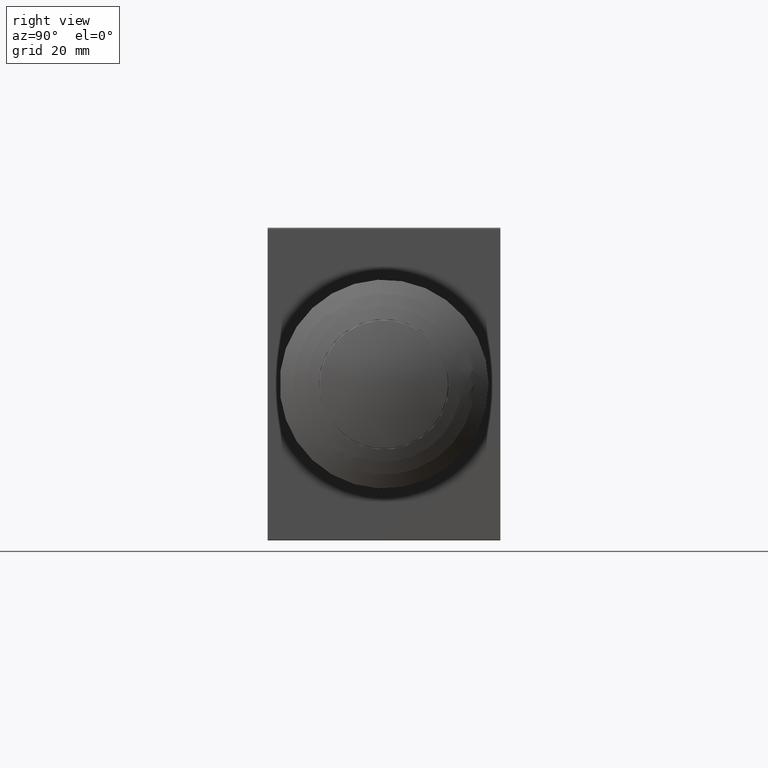
[diagram: clean part render]
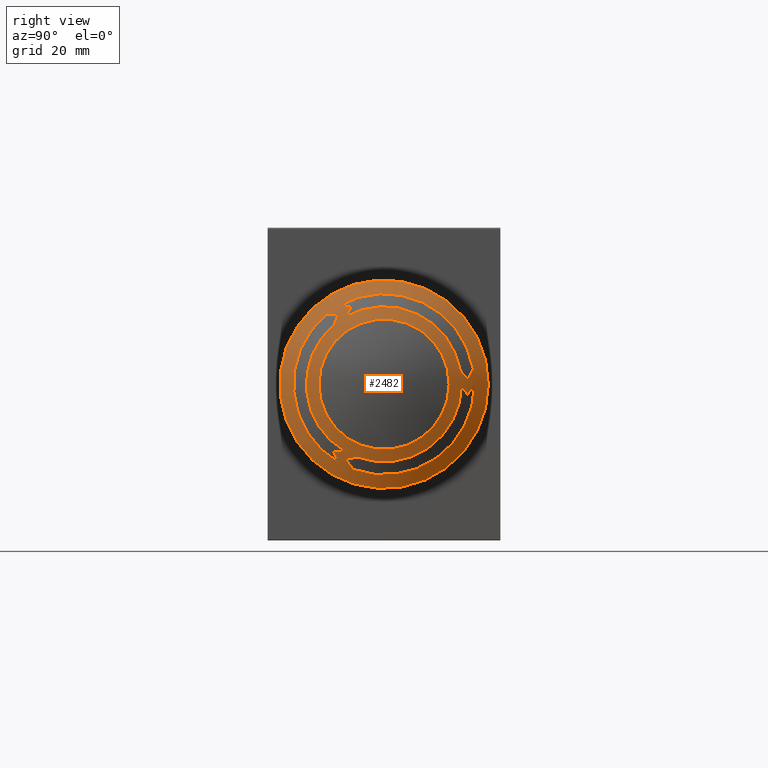
[diagram: same view with one face highlighted and labeled with its STEP entity id]
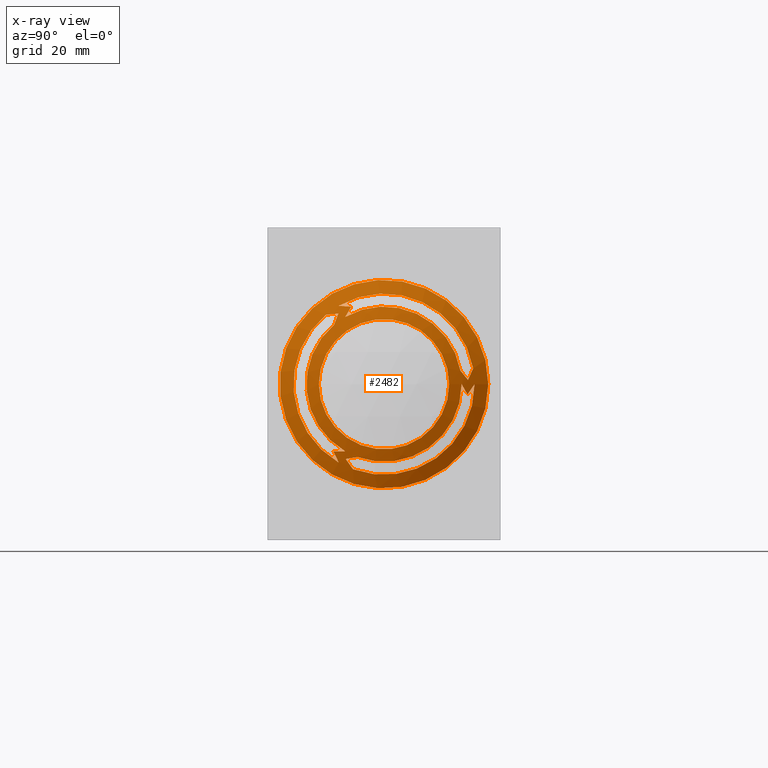
[diagram: x-ray of the same camera — body ghosted, the highlighted face saturated]
A machine part, right view. The second image highlights one B-rep face of the part: STEP entity #2482.
The next image is the same camera in x-ray: the body ghosted, the highlighted face saturated — about 0% of this face is hidden behind the body in this view.
In plain terms, the highlighted spherical surface has radius 42.9695 mm.
Its self-contained STEP definition (entity closure, byte-faithful):
#214=CARTESIAN_POINT('',(17.496637415900867,-6.265117936869075,-14.469868994267387));
#215=VERTEX_POINT('',#214);
#222=CARTESIAN_POINT('',(16.962772236921850,-4.855513292471695,-16.444620863753400));
#223=VERTEX_POINT('',#222);
#224=CARTESIAN_POINT('',(-22.281675257115516,-10.611396956599197,-8.381053485867064));
#225=DIRECTION('',(0.0,-0.813915195325812,-0.580983695827813));
#226=DIRECTION('',(0.0,-0.580983695827813,0.813915195325812));
#227=AXIS2_PLACEMENT_3D('',#224,#225,#226);
#228=CIRCLE('',#227,40.475646686926915);
#229=EDGE_CURVE('',#223,#215,#228,.T.);
#246=CARTESIAN_POINT('',(17.984646391530958,-4.000462934157525,-14.095389311788630));
#247=VERTEX_POINT('',#246);
#254=CARTESIAN_POINT('',(-22.281675257115516,3.262048253989444,-12.894472227076230));
#255=DIRECTION('',(0.0,-0.163142980605630,0.986602436586851));
#256=DIRECTION('',(0.0,0.986602436586851,0.163142980605630));
#257=AXIS2_PLACEMENT_3D('',#254,#255,#256);
#258=CIRCLE('',#257,40.933640562678640);
#259=EDGE_CURVE('',#215,#247,#258,.T.);
#271=CARTESIAN_POINT('',(17.984646391530958,16.129839215727504,0.0));
#272=VERTEX_POINT('',#271);
#279=CARTESIAN_POINT('',(17.984646391530958,1.129839215727505,0.0));
#280=DIRECTION('',(1.0,0.0,0.0));
#281=DIRECTION('',(0.0,-1.0,0.0));
#282=AXIS2_PLACEMENT_3D('',#279,#280,#281);
#283=CIRCLE('',#282,15.0);
#284=EDGE_CURVE('',#247,#272,#283,.T.);
#297=CARTESIAN_POINT('',(16.962772236921850,18.629839215727504,0.0));
#298=VERTEX_POINT('',#297);
#299=CARTESIAN_POINT('',(16.962772236921850,1.129839215727505,0.0));
#300=DIRECTION('',(-1.0,0.0,0.0));
#301=DIRECTION('',(0.0,1.0,0.0));
#302=AXIS2_PLACEMENT_3D('',#299,#300,#301);
#303=CIRCLE('',#302,17.500000000000000);
#304=EDGE_CURVE('',#298,#223,#303,.T.);
#322=CARTESIAN_POINT('',(17.496637415900867,17.256292638597643,-2.000000000000000));
#323=VERTEX_POINT('',#322);
#324=CARTESIAN_POINT('',(-22.281675257115516,13.021192609288503,-8.166663875583643));
#325=DIRECTION('',(0.0,-0.824321483526595,0.566121976076282));
#326=DIRECTION('',(0.0,0.566121976076282,0.824321483526595));
#327=AXIS2_PLACEMENT_3D('',#324,#325,#326);
#328=CIRCLE('',#327,40.475646686926922);
#329=EDGE_CURVE('',#323,#298,#328,.T.);
#347=CARTESIAN_POINT('',(-22.281675257115516,12.517421175573240,6.413790338441227));
#348=DIRECTION('',(0.0,0.871304843700746,0.490742161775018));
#349=DIRECTION('',(0.0,0.490742161775018,-0.871304843700746));
#350=AXIS2_PLACEMENT_3D('',#347,#348,#349);
#351=CIRCLE('',#350,40.933640562678640);
#352=EDGE_CURVE('',#272,#323,#351,.T.);
#426=CARTESIAN_POINT('',(16.962772236921850,18.363974893441142,3.038843109171293));
#427=VERTEX_POINT('',#426);
#434=CARTESIAN_POINT('',(16.962772236921850,-7.620160784272506,15.155444566227667));
#435=VERTEX_POINT('',#434);
#436=CARTESIAN_POINT('',(16.962772236921850,1.129839215727505,0.0));
#437=DIRECTION('',(-1.000000000000000,0.0,0.0));
#438=DIRECTION('',(0.0,-0.500000000000001,0.866025403784438));
#439=AXIS2_PLACEMENT_3D('',#436,#437,#438);
#440=CIRCLE('',#439,17.499999999999996);
#441=EDGE_CURVE('',#435,#427,#440,.T.);
#458=CARTESIAN_POINT('',(17.496637415900867,17.358591930494136,0.830713743087626));
#459=VERTEX_POINT('',#458);
#466=CARTESIAN_POINT('',(-22.281675257115516,14.258662531127854,-5.977682054134155));
#467=DIRECTION('',(0.0,0.910104237434364,-0.414379387764420));
#468=DIRECTION('',(0.0,-0.414379387764420,-0.910104237434364));
#469=AXIS2_PLACEMENT_3D('',#466,#467,#468);
#470=CIRCLE('',#469,40.475646686926922);
#471=EDGE_CURVE('',#427,#459,#470,.T.);
#483=CARTESIAN_POINT('',(17.984646391530958,15.901955510910621,2.604722665003965));
#484=VERTEX_POINT('',#483);
#491=CARTESIAN_POINT('',(-22.281675257115516,11.230675213637451,8.293783306851745));
#492=DIRECTION('',(0.0,-0.772851283217023,-0.634587183947014));
#493=DIRECTION('',(0.0,-0.634587183947014,0.772851283217023));
#494=AXIS2_PLACEMENT_3D('',#491,#492,#493);
#495=CIRCLE('',#494,40.933640562678640);
#496=EDGE_CURVE('',#459,#484,#495,.T.);
#509=CARTESIAN_POINT('',(17.496637415900867,-5.201336688138700,14.965918337152047));
#510=VERTEX_POINT('',#509);
#511=CARTESIAN_POINT('',(-22.281675257115516,2.256700899371106,14.381546061993939));
#512=DIRECTION('',(0.0,-0.078115271159408,-0.996944333657448));
#513=DIRECTION('',(0.0,-0.996944333657448,0.078115271159408));
#514=AXIS2_PLACEMENT_3D('',#511,#512,#513);
#515=CIRCLE('',#514,40.475646686926915);
#516=EDGE_CURVE('',#510,#435,#515,.T.);
#534=CARTESIAN_POINT('',(17.984646391530958,-6.370160784272506,12.990381056766571));
#535=VERTEX_POINT('',#534);
#536=CARTESIAN_POINT('',(-22.281675257115516,-10.118457131832663,6.655040095683159));
#537=DIRECTION('',(0.0,-0.860647600655632,0.509201048197766));
#538=DIRECTION('',(0.0,0.509201048197766,0.860647600655632));
#539=AXIS2_PLACEMENT_3D('',#536,#537,#538);
#540=CIRCLE('',#539,40.933640562678640);
#541=EDGE_CURVE('',#535,#510,#540,.T.);
#559=CARTESIAN_POINT('',(17.984646391530958,1.129839215727505,0.0));
#560=DIRECTION('',(1.0,0.0,0.0));
#561=DIRECTION('',(0.0,0.500000000000001,-0.866025403784438));
#562=AXIS2_PLACEMENT_3D('',#559,#560,#561);
#563=CIRCLE('',#562,14.999999999999998);
#564=EDGE_CURVE('',#484,#535,#563,.T.);
#586=CARTESIAN_POINT('',(17.496637415900867,-8.665438303276435,-12.965918337152058));
#587=VERTEX_POINT('',#586);
#594=CARTESIAN_POINT('',(17.984646391530958,-6.370160784272485,-12.990381056766584));
#595=VERTEX_POINT('',#594);
#596=CARTESIAN_POINT('',(-22.281675257115516,0.990553603441932,-13.068830434124408));
#597=DIRECTION('',(0.0,-0.010657243045115,-0.999943209972785));
#598=DIRECTION('',(0.0,-0.999943209972785,0.010657243045115));
#599=AXIS2_PLACEMENT_3D('',#596,#597,#598);
#600=CIRCLE('',#599,40.933640562678633);
#601=EDGE_CURVE('',#595,#587,#600,.T.);
#626=CARTESIAN_POINT('',(16.962772236921850,-7.620160784272488,-15.155444566227679));
#627=VERTEX_POINT('',#626);
#634=CARTESIAN_POINT('',(-22.281675257115516,-11.888375861477103,-6.214882186410304));
#635=DIRECTION('',(0.0,0.902436754686003,0.430822357581166));
#636=DIRECTION('',(0.0,0.430822357581166,-0.902436754686003));
#637=AXIS2_PLACEMENT_3D('',#634,#635,#636);
#638=CIRCLE('',#637,40.475646686926922);
#639=EDGE_CURVE('',#587,#627,#638,.T.);
#659=CARTESIAN_POINT('',(16.962772236921850,-10.118943953786943,13.405777754582109));
#660=VERTEX_POINT('',#659);
#667=CARTESIAN_POINT('',(16.962772236921850,1.129839215727505,0.0));
#668=DIRECTION('',(-1.000000000000000,0.0,0.0));
#669=DIRECTION('',(0.0,-0.500000000000000,-0.866025403784439));
#670=AXIS2_PLACEMENT_3D('',#667,#668,#669);
#671=CIRCLE('',#670,17.500000000000000);
#672=EDGE_CURVE('',#627,#660,#671,.T.);
#693=CARTESIAN_POINT('',(17.984646391530958,-8.511974929570593,11.490666646784664));
#694=VERTEX_POINT('',#693);
#695=CARTESIAN_POINT('',(17.984646391530958,1.129839215727505,0.0));
#696=DIRECTION('',(1.0,0.0,0.0));
#697=DIRECTION('',(0.0,0.499999999999999,0.866025403784439));
#698=AXIS2_PLACEMENT_3D('',#695,#696,#697);
#699=CIRCLE('',#698,14.999999999999998);
#700=EDGE_CURVE('',#694,#595,#699,.T.);
#726=CARTESIAN_POINT('',(17.496637415900867,-7.701504540524377,13.640742921810045));
#727=VERTEX_POINT('',#726);
#728=CARTESIAN_POINT('',(-22.281675257115516,-11.104926951844423,4.611890197060304));
#729=DIRECTION('',(0.0,0.935728043635769,-0.352722310541277));
#730=DIRECTION('',(0.0,-0.352722310541277,-0.935728043635769));
#731=AXIS2_PLACEMENT_3D('',#728,#729,#730);
#732=CIRCLE('',#731,40.931865639710978);
#733=EDGE_CURVE('',#727,#694,#732,.T.);
#757=CARTESIAN_POINT('',(-22.281675257115516,-0.266226261481028,14.363421386733341));
#758=DIRECTION('',(0.0,-0.096740007431715,0.995309685958150));
#759=DIRECTION('',(0.0,0.995309685958150,0.096740007431715));
#760=AXIS2_PLACEMENT_3D('',#757,#758,#759);
#761=CIRCLE('',#760,40.473692521967074);
#762=EDGE_CURVE('',#660,#727,#761,.T.);
#2424=CARTESIAN_POINT('',(15.667878094298802,21.284443144865229,0.0));
#2425=VERTEX_POINT('',#2424);
#2426=CARTESIAN_POINT('',(15.667878094298807,1.129839215727505,0.0));
#2427=DIRECTION('',(1.0,0.0,0.0));
#2428=DIRECTION('',(0.0,1.0,0.0));
#2429=AXIS2_PLACEMENT_3D('',#2426,#2427,#2428);
#2430=CIRCLE('',#2429,20.154603929137728);
#2431=EDGE_CURVE('',#2425,#2425,#2430,.T.);
#2439=CARTESIAN_POINT('',(-22.281675257115516,1.129839215727505,0.0));
#2440=DIRECTION('',(0.0,0.0,1.0));
#2441=DIRECTION('',(1.0,0.0,0.0));
#2442=AXIS2_PLACEMENT_3D('',#2439,#2440,#2441);
#2443=SPHERICAL_SURFACE('',#2442,42.969485208834605);
#2444=ORIENTED_EDGE('',*,*,#229,.T.);
#2445=ORIENTED_EDGE('',*,*,#259,.T.);
#2446=ORIENTED_EDGE('',*,*,#284,.T.);
#2447=ORIENTED_EDGE('',*,*,#352,.T.);
#2448=ORIENTED_EDGE('',*,*,#329,.T.);
#2449=ORIENTED_EDGE('',*,*,#304,.T.);
#2450=EDGE_LOOP('',(#2444,#2445,#2446,#2447,#2448,#2449));
#2451=FACE_OUTER_BOUND('',#2450,.T.);
#2452=ORIENTED_EDGE('',*,*,#441,.T.);
#2453=ORIENTED_EDGE('',*,*,#471,.T.);
#2454=ORIENTED_EDGE('',*,*,#496,.T.);
#2455=ORIENTED_EDGE('',*,*,#564,.T.);
#2456=ORIENTED_EDGE('',*,*,#541,.T.);
#2457=ORIENTED_EDGE('',*,*,#516,.T.);
#2458=EDGE_LOOP('',(#2452,#2453,#2454,#2455,#2456,#2457));
#2459=FACE_BOUND('',#2458,.T.);
#2460=ORIENTED_EDGE('',*,*,#601,.T.);
#2461=ORIENTED_EDGE('',*,*,#639,.T.);
#2462=ORIENTED_EDGE('',*,*,#672,.T.);
#2463=ORIENTED_EDGE('',*,*,#762,.T.);
#2464=ORIENTED_EDGE('',*,*,#733,.T.);
#2465=ORIENTED_EDGE('',*,*,#700,.T.);
#2466=EDGE_LOOP('',(#2460,#2461,#2462,#2463,#2464,#2465));
#2467=FACE_BOUND('',#2466,.T.);
#2468=CARTESIAN_POINT('',(18.801493224914132,13.721500209791040,0.0));
#2469=VERTEX_POINT('',#2468);
#2470=CARTESIAN_POINT('',(18.801493224914140,1.129839215727505,0.0));
#2471=DIRECTION('',(1.0,0.0,0.0));
#2472=DIRECTION('',(0.0,1.0,0.0));
#2473=AXIS2_PLACEMENT_3D('',#2470,#2471,#2472);
#2474=CIRCLE('',#2473,12.591660994063536);
#2475=EDGE_CURVE('',#2469,#2469,#2474,.T.);
#2476=ORIENTED_EDGE('',*,*,#2475,.F.);
#2477=EDGE_LOOP('',(#2476));
#2478=FACE_BOUND('',#2477,.T.);
#2479=ORIENTED_EDGE('',*,*,#2431,.T.);
#2480=EDGE_LOOP('',(#2479));
#2481=FACE_BOUND('',#2480,.T.);
#2482=ADVANCED_FACE('',(#2451,#2459,#2467,#2478,#2481),#2443,.T.);